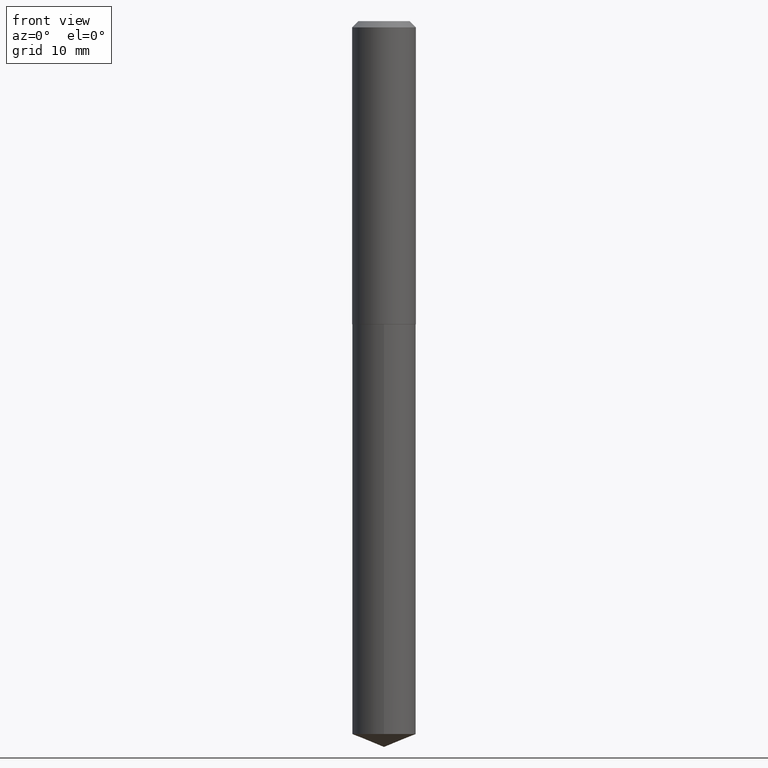
[diagram: clean part render]
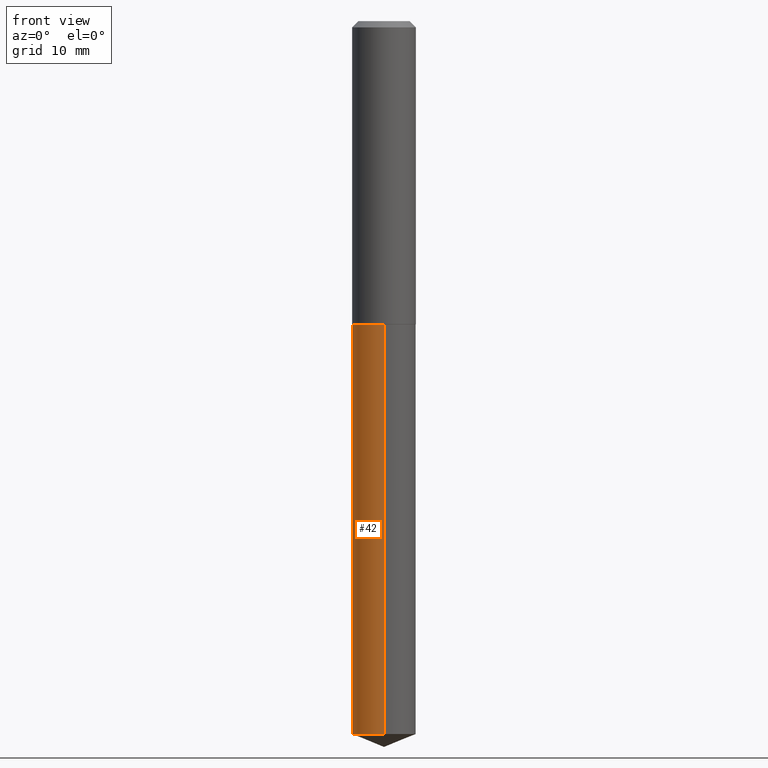
[diagram: same view with one face highlighted and labeled with its STEP entity id]
A machine part, front view. The second image highlights one B-rep face of the part: STEP entity #42.
In plain terms, the highlighted cylindrical surface (edge-blend (fillet) strip) has radius 4.0005 mm, axis along (-0, 0, 1).
Its self-contained STEP definition (entity closure, byte-faithful):
#2 = LINE ( 'NONE', #365, #187 ) ;
#14 = DIRECTION ( 'NONE',  ( -6.982962677686264344E-15, -1.000000000000000000, 3.469013325287953293E-15 ) ) ;
#18 = CARTESIAN_POINT ( 'NONE',  ( 3.659399521575438742E-29, -5.224652675444883351E-15, -1.496400000000000174 ) ) ;
#23 = EDGE_LOOP ( 'NONE', ( #120, #347, #79, #102 ) ) ;
#35 = EDGE_CURVE ( 'NONE', #315, #217, #2, .T. ) ;
#39 = EDGE_CURVE ( 'NONE', #75, #182, #91, .T. ) ;
#42 = ADVANCED_FACE ( 'NONE', ( #69 ), #180, .T. ) ;
#64 = CIRCLE ( 'NONE', #248, 0.1575000000000000011 ) ;
#69 = FACE_OUTER_BOUND ( 'NONE', #23, .T. ) ;
#75 = VERTEX_POINT ( 'NONE', #262 ) ;
#79 = ORIENTED_EDGE ( 'NONE', *, *, #35, .T. ) ;
#88 = EDGE_CURVE ( 'NONE', #75, #315, #64, .T. ) ;
#91 = LINE ( 'NONE', #211, #149 ) ;
#102 = ORIENTED_EDGE ( 'NONE', *, *, #185, .F. ) ;
#115 = CARTESIAN_POINT ( 'NONE',  ( 1.119104808822244181E-15, 0.1574999999999947553, -1.496400000000000841 ) ) ;
#120 = ORIENTED_EDGE ( 'NONE', *, *, #39, .F. ) ;
#140 = CIRCLE ( 'NONE', #210, 0.1575000000000000011 ) ;
#149 = VECTOR ( 'NONE', #334, 39.37007874015748143 ) ;
#180 = CYLINDRICAL_SURFACE ( 'NONE', #381, 0.1575000000000000011 ) ;
#182 = VERTEX_POINT ( 'NONE', #115 ) ;
#185 = EDGE_CURVE ( 'NONE', #182, #217, #140, .T. ) ;
#187 = VECTOR ( 'NONE', #242, 39.37007874015748143 ) ;
#201 = DIRECTION ( 'NONE',  ( -2.444198095015327587E-29, 3.493301069562700469E-15, 1.000000000000000000 ) ) ;
#210 = AXIS2_PLACEMENT_3D ( 'NONE', #18, #355, #327 ) ;
#211 = CARTESIAN_POINT ( 'NONE',  ( 1.119104808822194088E-15, 0.1574999999999947553, -1.496400000000000841 ) ) ;
#217 = VERTEX_POINT ( 'NONE', #300 ) ;
#242 = DIRECTION ( 'NONE',  ( -2.444198095015327587E-29, 3.493301069562700469E-15, 1.000000000000000000 ) ) ;
#248 = AXIS2_PLACEMENT_3D ( 'NONE', #356, #201, #14 ) ;
#262 = CARTESIAN_POINT ( 'NONE',  ( 1.119104808822243589E-15, 0.1574999999999877331, -3.519365869430963301 ) ) ;
#270 = CARTESIAN_POINT ( 'NONE',  ( -1.099816621735501100E-15, -0.1575000000000123246, -3.519365869430961968 ) ) ;
#278 = DIRECTION ( 'NONE',  ( -6.982962677686264344E-15, -1.000000000000000000, 3.469013325287953293E-15 ) ) ;
#282 = DIRECTION ( 'NONE',  ( -2.444198095015327587E-29, 3.493301069562700469E-15, 1.000000000000000000 ) ) ;
#300 = CARTESIAN_POINT ( 'NONE',  ( -1.099816621735550009E-15, -0.1575000000000052192, -1.496399999999999730 ) ) ;
#315 = VERTEX_POINT ( 'NONE', #270 ) ;
#327 = DIRECTION ( 'NONE',  ( -6.982962677686264344E-15, -1.000000000000000000, 3.469013325287953293E-15 ) ) ;
#334 = DIRECTION ( 'NONE',  ( -2.444198095015327587E-29, 3.493301069562700469E-15, 1.000000000000000000 ) ) ;
#343 = CARTESIAN_POINT ( 'NONE',  ( 3.659399521575438742E-29, -5.224652675444883351E-15, -1.496400000000000174 ) ) ;
#347 = ORIENTED_EDGE ( 'NONE', *, *, #88, .T. ) ;
#355 = DIRECTION ( 'NONE',  ( -2.444198095015327587E-29, 3.493301069562700469E-15, 1.000000000000000000 ) ) ;
#356 = CARTESIAN_POINT ( 'NONE',  ( 8.603928845919622629E-29, -1.229148151081690217E-14, -3.519365869430962412 ) ) ;
#365 = CARTESIAN_POINT ( 'NONE',  ( -1.099816621735550009E-15, -0.1575000000000052192, -1.496399999999999730 ) ) ;
#381 = AXIS2_PLACEMENT_3D ( 'NONE', #343, #282, #278 ) ;